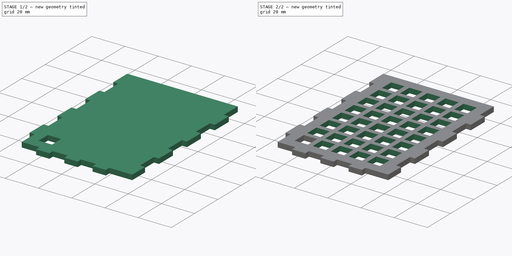
[diagram: build sequence overview — one tinted view per stage of 2, left to right]
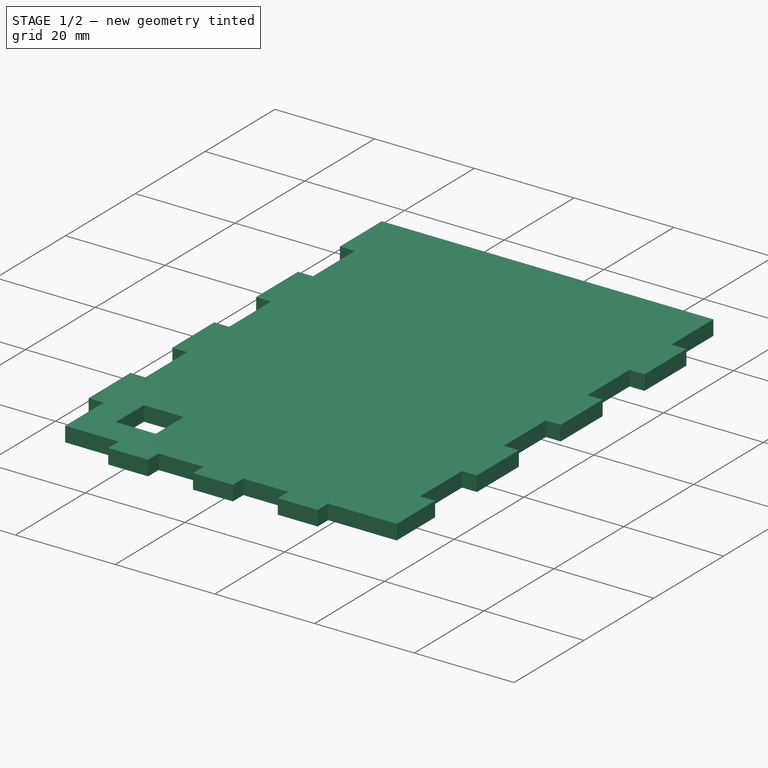
[diagram: stage 1 of 2 — iso view after this stage's code; geometry added in this stage tinted green]
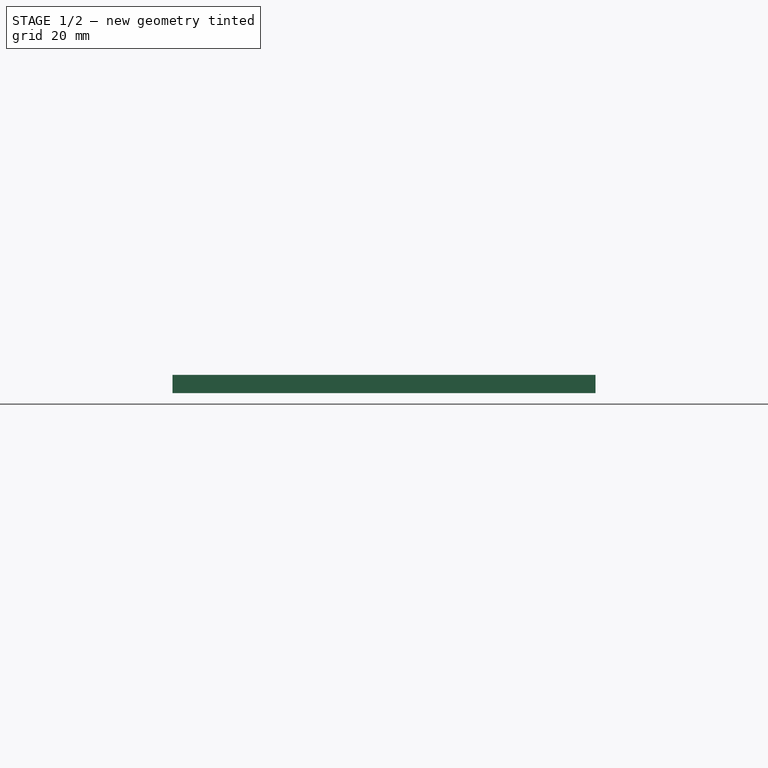
[diagram: stage 1 of 2 — front view after this stage's code; geometry added in this stage tinted green]
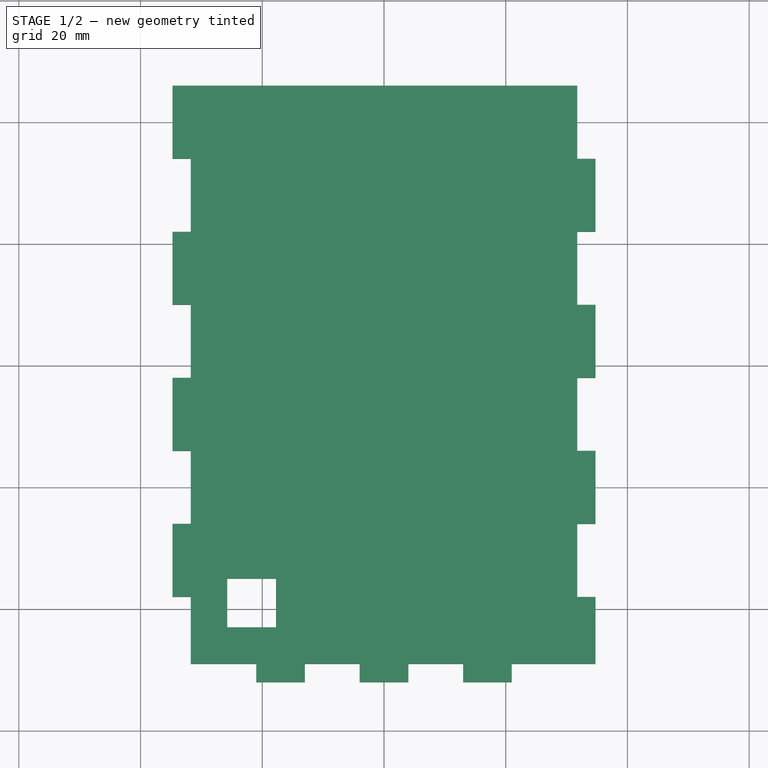
[diagram: stage 1 of 2 — top view after this stage's code; geometry added in this stage tinted green]
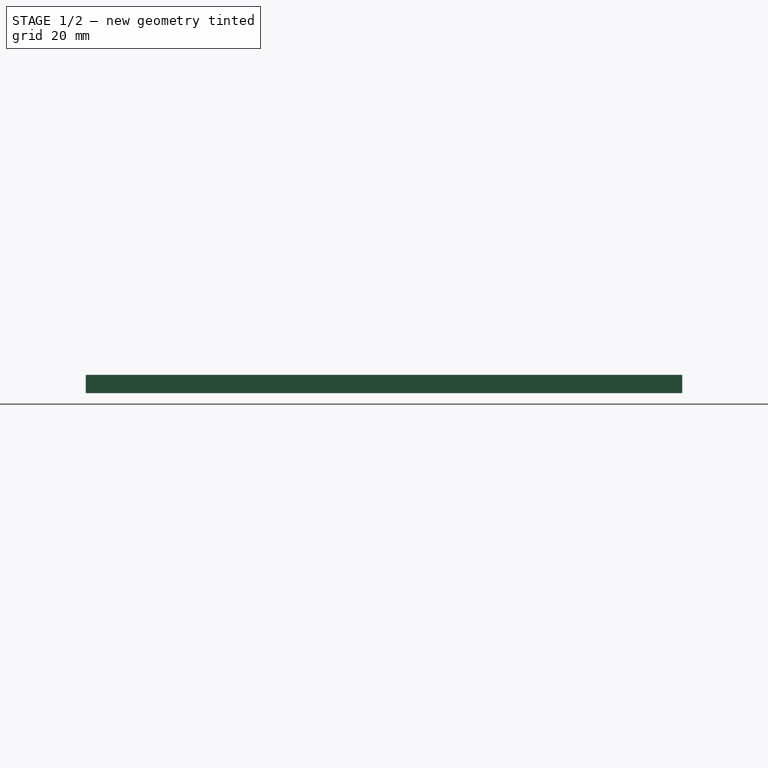
[diagram: stage 1 of 2 — right view after this stage's code; geometry added in this stage tinted green]
FCSTD DOCUMENT
Label: tea-light-side-squares
objects: Sketcher::SketchObject×2, PartDesign::LinearPattern×2, PartDesign::Pad×1, PartDesign::Pocket×1, PartDesign::MultiTransform×1
note: 9 computed .brp shape members not serialized (recipe doc carries the construction recipe); baked Part::Feature solids carry a one-line shape summary decoded from their .brp

FEATURE [Sketcher::SketchObject] Sketch
  sketch-geometry (44):
    g0: LineSegment StartX=34.75 StartY=-29 StartZ=0 EndX=21 EndY=-29 EndZ=0
    g1: LineSegment StartX=21 StartY=-29 StartZ=0 EndX=21 EndY=-32 EndZ=0
    g2: LineSegment StartX=21 StartY=-32 StartZ=0 EndX=13 EndY=-32 EndZ=0
    g3: LineSegment StartX=13 StartY=-32 StartZ=0 EndX=13 EndY=-29 EndZ=0
    g4: LineSegment StartX=13 StartY=-29 StartZ=0 EndX=4 EndY=-29 EndZ=0
    g5: LineSegment StartX=4 StartY=-29 StartZ=0 EndX=4 EndY=-32 EndZ=0
    g6: LineSegment StartX=4 StartY=-32 StartZ=0 EndX=-4 EndY=-32 EndZ=0
    g7: LineSegment StartX=-4 StartY=-32 StartZ=0 EndX=-4 EndY=-29 EndZ=0
    g8: LineSegment StartX=-4 StartY=-29 StartZ=0 EndX=-13 EndY=-29 EndZ=0
    g9: LineSegment StartX=-13 StartY=-29 StartZ=0 EndX=-13 EndY=-32 EndZ=0
    g10: LineSegment StartX=-13 StartY=-32 StartZ=0 EndX=-21 EndY=-32 EndZ=0
    g11: LineSegment StartX=-21 StartY=-32 StartZ=0 EndX=-21 EndY=-29 EndZ=0
    g12: LineSegment StartX=-21 StartY=-29 StartZ=0 EndX=-31.75 EndY=-29 EndZ=0
    g13: LineSegment StartX=-31.75 StartY=-29 StartZ=0 EndX=-31.75 EndY=-18 EndZ=0
    g14: LineSegment StartX=-31.75 StartY=-18 StartZ=0 EndX=-34.75 EndY=-18 EndZ=0
    g15: LineSegment StartX=-34.75 StartY=-18 StartZ=0 EndX=-34.75 EndY=-6 EndZ=0
    g16: LineSegment StartX=-34.75 StartY=-6 StartZ=0 EndX=-31.75 EndY=-6 EndZ=0
    g17: LineSegment StartX=-31.75 StartY=-6 StartZ=0 EndX=-31.75 EndY=6 EndZ=0
    g18: LineSegment StartX=-31.75 StartY=6 StartZ=0 EndX=-34.75 EndY=6 EndZ=0
    g19: LineSegment StartX=-34.75 StartY=6 StartZ=0 EndX=-34.75 EndY=18 EndZ=0
    g20: LineSegment StartX=-34.75 StartY=18 StartZ=0 EndX=-31.75 EndY=18 EndZ=0
    g21: LineSegment StartX=-31.75 StartY=18 StartZ=0 EndX=-31.75 EndY=30 EndZ=0
    g22: LineSegment StartX=-31.75 StartY=30 StartZ=0 EndX=-34.75 EndY=30 EndZ=0
    g23: LineSegment StartX=-34.75 StartY=30 StartZ=0 EndX=-34.75 EndY=42 EndZ=0
    g24: LineSegment StartX=-34.75 StartY=42 StartZ=0 EndX=-31.75 EndY=42 EndZ=0
    g25: LineSegment StartX=-31.75 StartY=42 StartZ=0 EndX=-31.75 EndY=54 EndZ=0
    g26: LineSegment StartX=-31.75 StartY=54 StartZ=0 EndX=-34.75 EndY=54 EndZ=0
    g27: LineSegment StartX=-34.75 StartY=54 StartZ=0 EndX=-34.75 EndY=66 EndZ=0
    g28: LineSegment StartX=-34.75 StartY=66 StartZ=0 EndX=31.75 EndY=66 EndZ=0
    g29: LineSegment StartX=31.75 StartY=66 StartZ=0 EndX=31.75 EndY=54 EndZ=0
    g30: LineSegment StartX=31.75 StartY=54 StartZ=0 EndX=34.75 EndY=54 EndZ=0
    g31: LineSegment StartX=34.75 StartY=54 StartZ=0 EndX=34.75 EndY=42 EndZ=0
    g32: LineSegment StartX=34.75 StartY=42 StartZ=0 EndX=31.75 EndY=42 EndZ=0
    g33: LineSegment StartX=31.75 StartY=42 StartZ=0 EndX=31.75 EndY=30 EndZ=0
    g34: LineSegment StartX=31.75 StartY=30 StartZ=0 EndX=34.75 EndY=30 EndZ=0
    g35: LineSegment StartX=34.75 StartY=30 StartZ=0 EndX=34.75 EndY=18 EndZ=0
    g36: LineSegment StartX=34.75 StartY=18 StartZ=0 EndX=31.75 EndY=18 EndZ=0
    g37: LineSegment StartX=31.75 StartY=18 StartZ=0 EndX=31.75 EndY=6 EndZ=0
    g38: LineSegment StartX=31.75 StartY=6 StartZ=0 EndX=34.75 EndY=6 EndZ=0
    g39: LineSegment StartX=34.75 StartY=6 StartZ=0 EndX=34.75 EndY=-6 EndZ=0
    g40: LineSegment StartX=34.75 StartY=-6 StartZ=0 EndX=31.75 EndY=-6 EndZ=0
    g41: LineSegment StartX=31.75 StartY=-6 StartZ=0 EndX=31.75 EndY=-18 EndZ=0
    g42: LineSegment StartX=31.75 StartY=-18 StartZ=0 EndX=34.75 EndY=-18 EndZ=0
    g43: LineSegment StartX=34.75 StartY=-18 StartZ=0 EndX=34.75 EndY=-29 EndZ=0
  constraints (132):
    c: Horizontal(g0)
    c: Coincident(g0,g1)
    c: Vertical(g1)
    c: Coincident(g1,g2)
    c: Horizontal(g2)
    c: Coincident(g2,g3)
    c: Vertical(g3)
    c: Coincident(g3,g4)
    c: Horizontal(g4)
    c: Coincident(g4,g5)
    c: Vertical(g5)
    c: Coincident(g5,g6)
    c: Coincident(g6,g7)
    c: Vertical(g7)
    c: Coincident(g7,g8)
    c: Horizontal(g8)
    c: Coincident(g8,g9)
    c: Vertical(g9)
    c: Coincident(g9,g10)
    c: Horizontal(g10)
    c: Coincident(g10,g11)
    c: Vertical(g11)
    c: Coincident(g11,g12)
    c: Horizontal(g12)
    c: Coincident(g12,g13)
    c: Vertical(g13)
    c: Coincident(g13,g14)
    c: Coincident(g14,g15)
    c: Vertical(g15)
    c: Coincident(g15,g16)
    c: Horizontal(g16)
    c: Coincident(g16,g17)
    c: Vertical(g17)
    c: Coincident(g17,g18)
    c: Coincident(g18,g19)
    c: Vertical(g19)
    c: Coincident(g19,g20)
    c: Coincident(g20,g21)
    c: Coincident(g21,g22)
    c: Horizontal(g22)
    c: Coincident(g22,g23)
    c: Vertical(g23)
    c: Coincident(g23,g24)
    c: Horizontal(g24)
    c: Coincident(g24,g25)
    c: Vertical(g25)
    c: Coincident(g25,g26)
    c: Horizontal(g26)
    c: Coincident(g26,g27)
    c: Vertical(g27)
    c: Coincident(g27,g28)
    c: Horizontal(g28)
    c: Coincident(g28,g29)
    c: Vertical(g29)
    c: Coincident(g29,g30)
    c: Horizontal(g30)
    c: Coincident(g30,g31)
    c: Vertical(g31)
    c: Coincident(g31,g32)
    c: Coincident(g32,g33)
    c: Vertical(g33)
    c: Coincident(g33,g34)
    c: Coincident(g34,g35)
    c: Coincident(g35,g36)
    c: Coincident(g36,g37)
    c: Vertical(g37)
    c: Coincident(g37,g38)
    c: Horizontal(g38)
    c: Coincident(g38,g39)
    c: Coincident(g39,g40)
    c: Horizontal(g40)
    c: Coincident(g40,g41)
    c: Coincident(g41,g42)
    c: Horizontal(g42)
    c: Coincident(g42,g43)
    c: Coincident(g43,g0)
    c: Horizontal(g14)
    c: Horizontal(g18)
    c: Horizontal(g20)
    c: Horizontal(g36)
    c: Horizontal(g32)
    c: Horizontal(g34)
    c: Vertical(g21)
    c: Vertical(g41)
    c: Vertical(g43)
    c: Vertical(g35)
    c: Vertical(g39)
    c: Symmetric(g25,g29,g-2)
    c: DistanceY(g7,g27) = 95
    c: DistanceX(g25,g29) = 63.5
    c: Equal(g11,g9)
    c: Equal(g9,g7)
    c: Equal(g7,g5)
    c: Equal(g5,g3)
    c: Equal(g3,g1)
    c: Equal(g38,g36)
    c: Equal(g36,g34)
    c: Equal(g34,g32)
    c: Equal(g32,g30)
    c: Equal(g30,g40)
    c: Equal(g40,g42)
    c: Equal(g1,g42)
    c: Equal(g14,g16)
    c: Equal(g16,g18)
    c: Equal(g18,g20)
    c: Equal(g20,g22)
    c: Equal(g22,g24)
    c: Equal(g24,g26)
    c: DistanceY(g1) = -3
    c: Equal(g14,g11)
    c: Equal(g10,g6)
    c: Equal(g6,g2)
    c: Equal(g8,g4)
    c: Symmetric(g6,g5,g-2)
    c: DistanceX(g10) = -8
    c: DistanceX(g4) = -9
    c: Equal(g13,g43)
    c: Equal(g15,g41)
    c: Equal(g17,g39)
    c: Equal(g19,g37)
    c: Equal(g35,g21)
    c: Equal(g23,g33)
    c: Equal(g25,g31)
    c: Equal(g27,g29)
    c: Symmetric(g38,g39,g-1)
    c: Equal(g23,g19)
    c: Equal(g19,g15)
    c: Equal(g17,g21)
    c: Equal(g21,g25)
    c: DistanceY(g37) = -12
    c: DistanceY(g35) = -12
    c: DistanceY(g27) = 12
FEATURE [PartDesign::Pad] Pad
  Length = 3
  Length2 = 100
  Sketch = -> Sketch
  Type = 0
FEATURE [Sketcher::SketchObject] Sketch001
  ExternalGeometry = -> [Pad]
  Placement = pos=(0,0,3) rot=(0,0,1;0rad)
  Support = -> Pad [Face46]
  sketch-geometry (4):
    g0: LineSegment StartX=-25.75 StartY=-15 StartZ=0 EndX=-17.75 EndY=-15 EndZ=0
    g1: LineSegment StartX=-17.75 StartY=-15 StartZ=0 EndX=-17.75 EndY=-23 EndZ=0
    g2: LineSegment StartX=-17.75 StartY=-23 StartZ=0 EndX=-25.75 EndY=-23 EndZ=0
    g3: LineSegment StartX=-25.75 StartY=-23 StartZ=0 EndX=-25.75 EndY=-15 EndZ=0
  constraints (12):
    c: Coincident(g0,g1)
    c: Coincident(g1,g2)
    c: Coincident(g2,g3)
    c: Coincident(g3,g0)
    c: Horizontal(g0)
    c: Horizontal(g2)
    c: Vertical(g1)
    c: Vertical(g3)
    c: Equal(g0,g1)
    c: Distance(g2,g-3) = 6
    c: DistanceX(g0) = 8
    c: Distance(g2,g-4) = 6
FEATURE [PartDesign::Pocket] Pocket
  Length = 5
  Sketch = -> Sketch001
  Type = 0
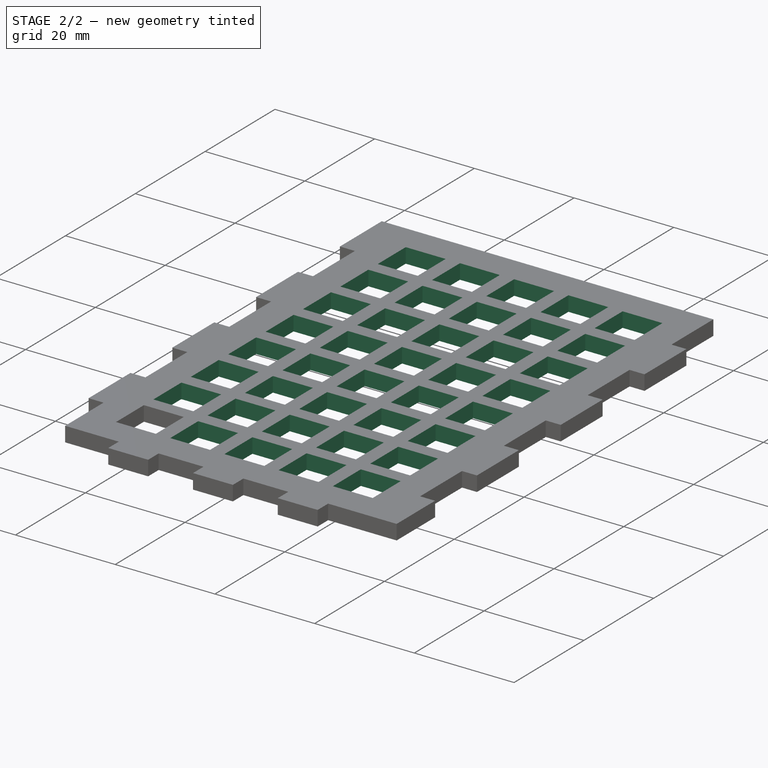
[diagram: stage 2 of 2 — iso view after this stage's code; geometry added in this stage tinted green]
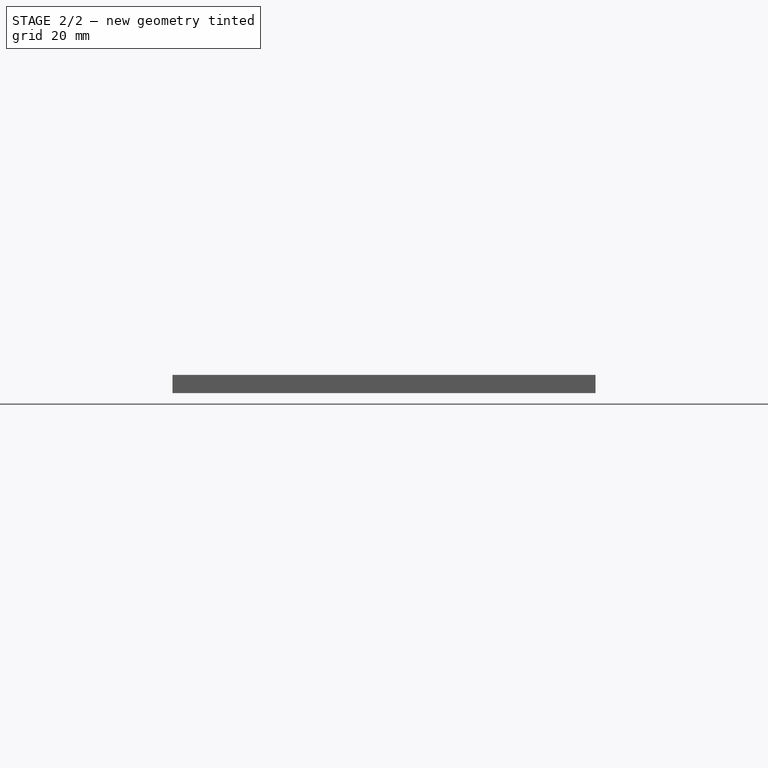
[diagram: stage 2 of 2 — front view after this stage's code; geometry added in this stage tinted green]
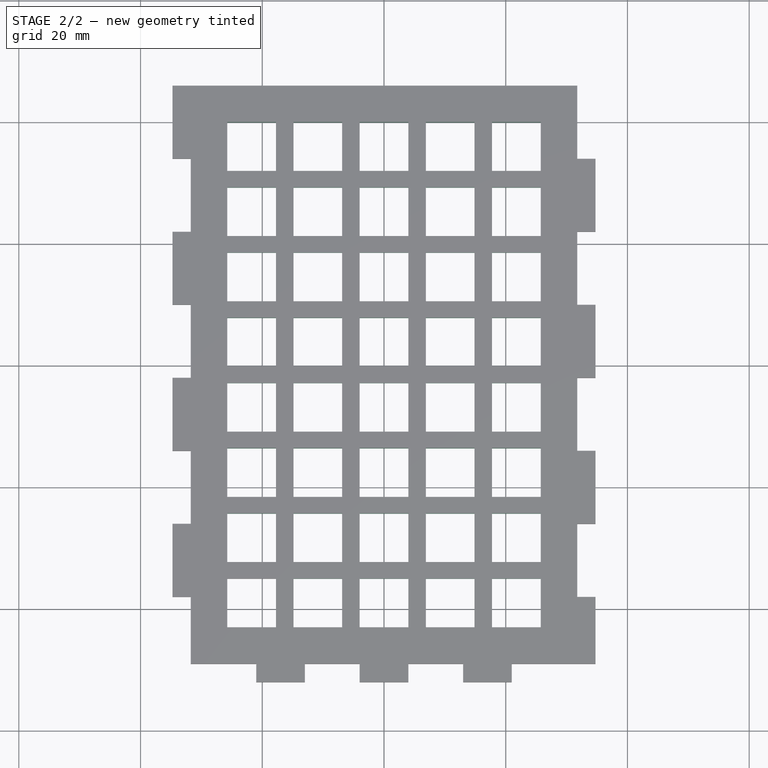
[diagram: stage 2 of 2 — top view after this stage's code; geometry added in this stage tinted green]
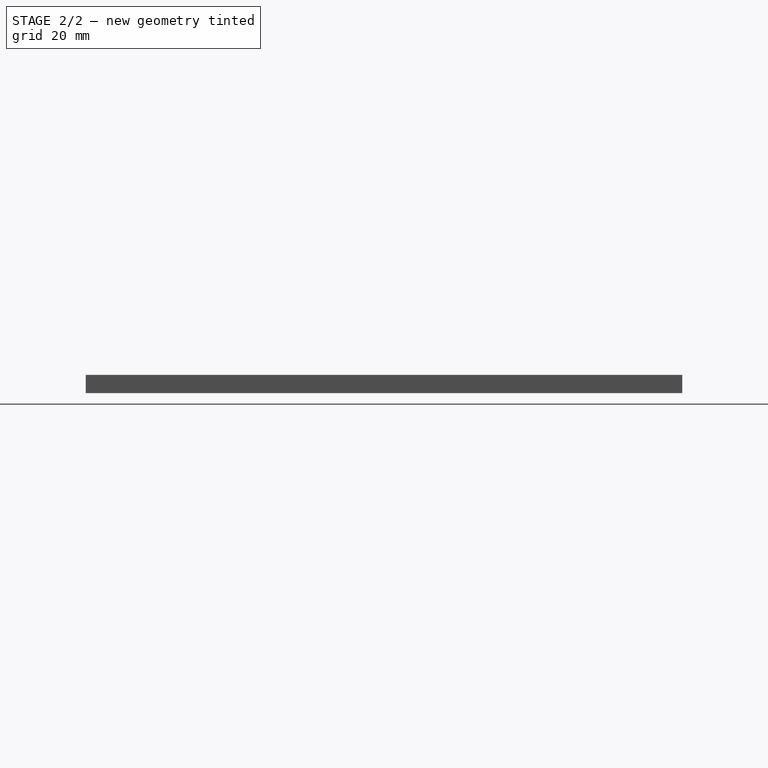
[diagram: stage 2 of 2 — right view after this stage's code; geometry added in this stage tinted green]
FEATURE [PartDesign::LinearPattern] LinearPattern
  Direction = -> Sketch001 [H_Axis]
  Length = 43.5
  Occurrences = 5
FEATURE [PartDesign::LinearPattern] LinearPattern001
  Direction = -> Sketch001 [V_Axis]
  Length = 75
  Occurrences = 8
FEATURE [PartDesign::MultiTransform] MultiTransform
  Originals = -> [Pocket]
  Transformations = -> [LinearPattern,LinearPattern001]
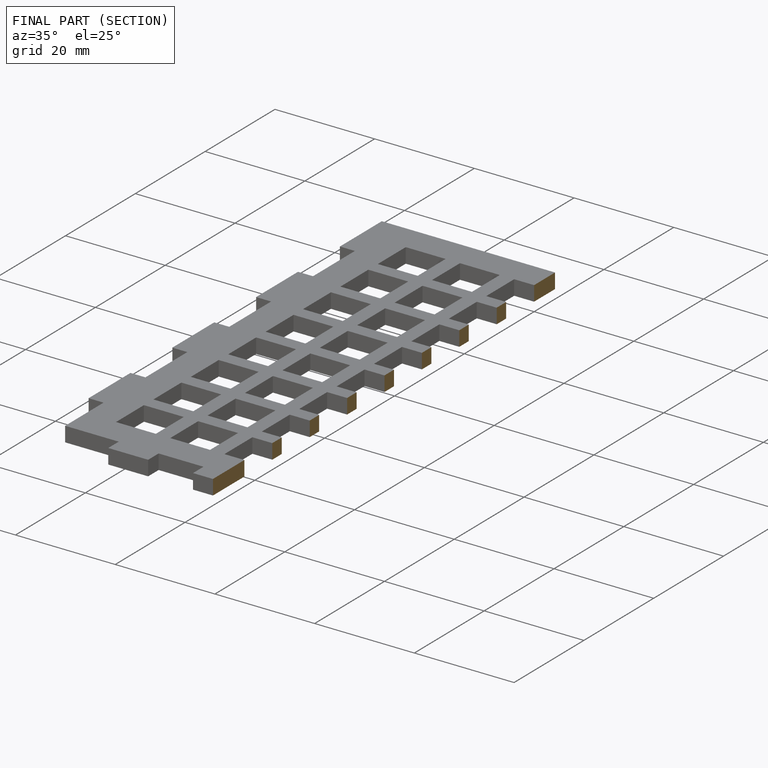
[diagram: finished part — half-section view (interior)]
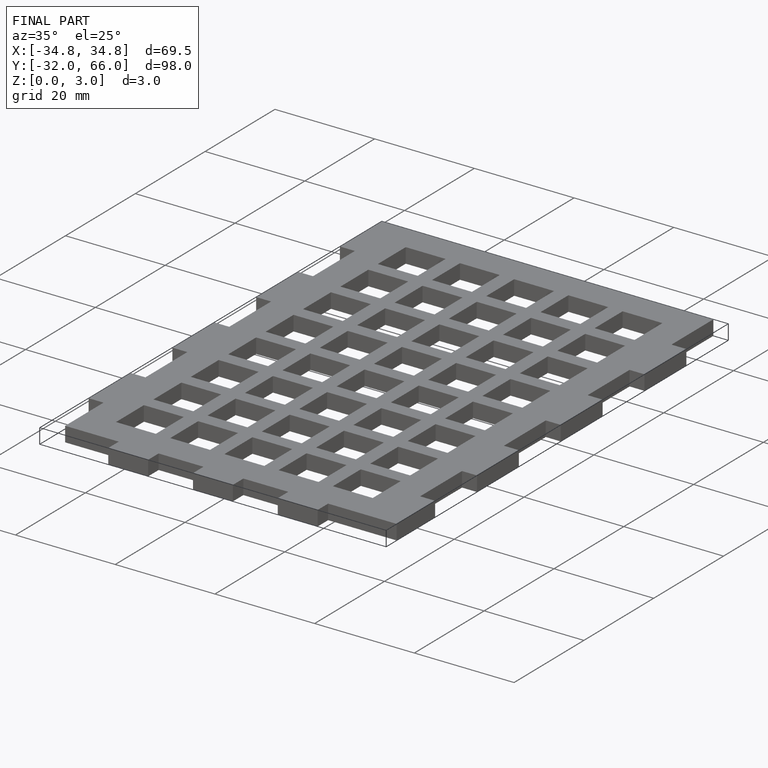
[diagram: finished part — iso view with bounding-box wireframe]
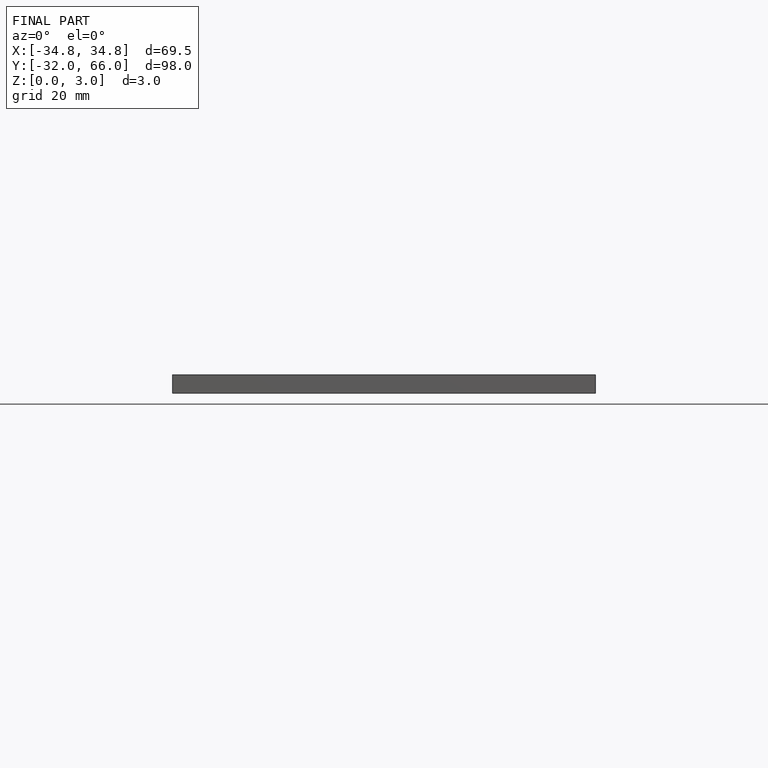
[diagram: finished part — front view with bounding-box wireframe]
